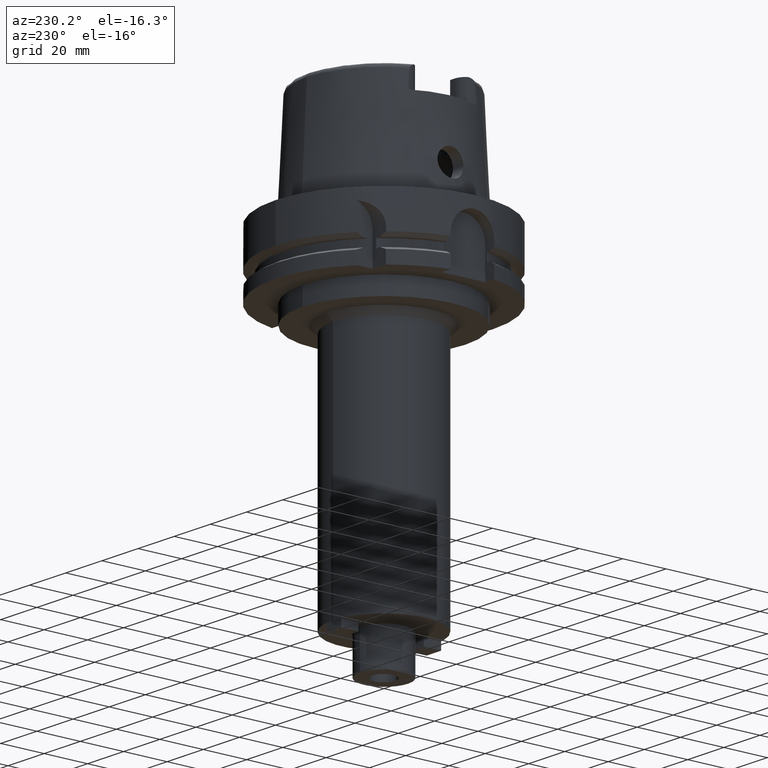
[diagram: clean part render]
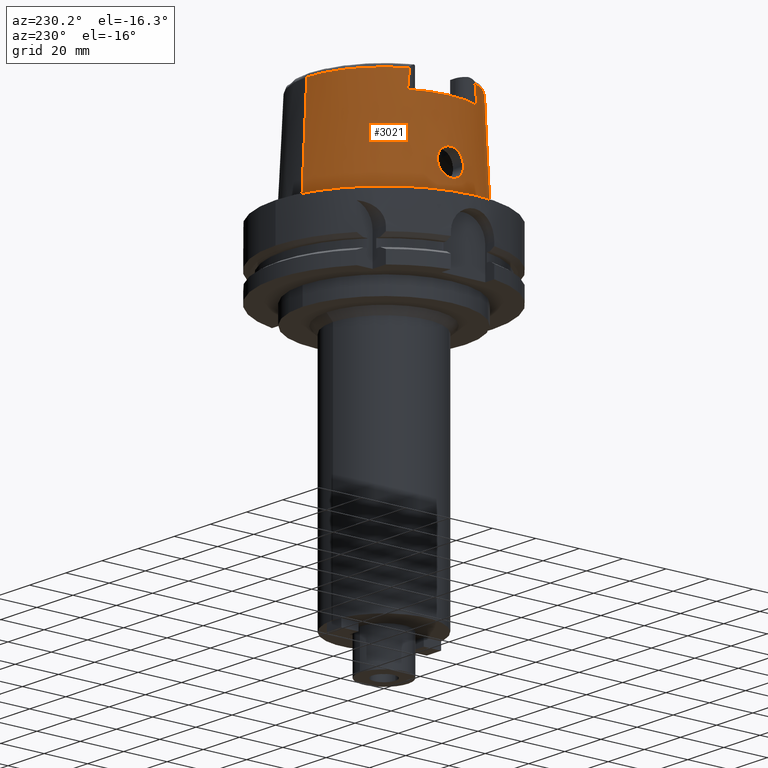
[diagram: same view with one face highlighted and labeled with its STEP entity id]
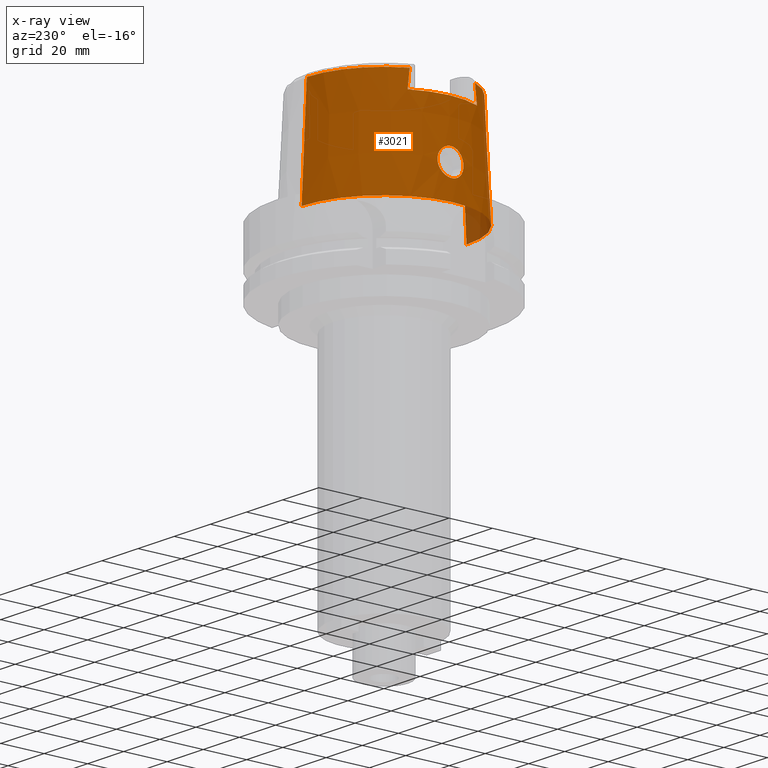
[diagram: x-ray of the same camera — body ghosted, the highlighted face saturated]
A machine part, auxiliary view. The second image highlights one B-rep face of the part: STEP entity #3021.
The next image is the same camera in x-ray: the body ghosted, the highlighted face saturated — about 3% of this face is hidden behind the body in this view.
In plain terms, the highlighted conical surface has half-angle 2.862 deg.
Its self-contained STEP definition (entity closure, byte-faithful):
#130=CARTESIAN_POINT('',(0.E0,0.E0,4.E1));
#131=DIRECTION('',(0.E0,0.E0,-1.E0));
#132=DIRECTION('',(-8.958345712660E-1,-4.443876921391E-1,0.E0));
#133=AXIS2_PLACEMENT_3D('',#130,#131,#132);
#221=CARTESIAN_POINT('',(-3.224999491821E1,-1.506448480621E1,4.809973264022E1));
#281=CARTESIAN_POINT('',(0.E0,0.E0,4.809987853799E1));
#282=DIRECTION('',(0.E0,0.E0,-1.E0));
#283=DIRECTION('',(0.E0,-1.E0,0.E0));
#284=AXIS2_PLACEMENT_3D('',#281,#282,#283);
#289=CARTESIAN_POINT('',(-3.224999876012E1,-1.599794043148E1,4.E1));
#290=CARTESIAN_POINT('',(-3.224999876012E1,-1.589618560063E1,4.090434232027E1));
#291=CARTESIAN_POINT('',(-3.224999990104E1,-1.569149929484E1,4.271014757138E1));
#292=CARTESIAN_POINT('',(-3.225000220619E1,-1.538028254450E1,4.541006270286E1));
#293=CARTESIAN_POINT('',(-3.224999491821E1,-1.517027181539E1,4.720433969908E1));
#294=CARTESIAN_POINT('',(-3.224999491821E1,-1.506448480621E1,4.809973264022E1));
#299=DIRECTION('',(5.154182075151E-5,-4.993927430816E-2,-9.987522546783E-1));
#300=VECTOR('',#299,4.815996991514E1);
#301=CARTESIAN_POINT('',(-2.482252536761E-3,-3.559494263425E1,
4.809987853799E1));
#302=LINE('',#301,#300);
#306=CARTESIAN_POINT('',(-3.225000136841E1,1.506443228461E1,4.809991919933E1));
#307=CARTESIAN_POINT('',(-3.225000136841E1,1.517024628781E1,4.720430024068E1));
#308=CARTESIAN_POINT('',(-3.225000007421E1,1.538032523710E1,4.541024583547E1));
#309=CARTESIAN_POINT('',(-3.224999768767E1,1.569154926881E1,4.271027467018E1));
#310=CARTESIAN_POINT('',(-3.225000534596E1,1.589614940559E1,4.090439636549E1));
#311=CARTESIAN_POINT('',(-3.225000534596E1,1.599791057085E1,4.E1));
#316=CARTESIAN_POINT('',(-3.755000165825E1,1.432651546991E-13,9.E0));
#317=CARTESIAN_POINT('',(-3.755000165825E1,-5.185560787448E-1,9.E0));
#318=CARTESIAN_POINT('',(-3.752119038131E1,-1.556716984308E0,9.135734722668E0));
#319=CARTESIAN_POINT('',(-3.740130554103E1,-3.006802699936E0,9.729109611442E0));
#320=CARTESIAN_POINT('',(-3.722726318975E1,-4.270787324592E0,1.068748216953E1));
#321=CARTESIAN_POINT('',(-3.703605345602E1,-5.245410217770E0,1.194520323917E1));
#322=CARTESIAN_POINT('',(-3.686625967759E1,-5.862506743114E0,1.342477736647E1));
#323=CARTESIAN_POINT('',(-3.675188493320E1,-6.068957740844E0,1.500492021002E1));
#324=CARTESIAN_POINT('',(-3.670699294937E1,-5.861659041703E0,1.657084310318E1));
#325=CARTESIAN_POINT('',(-3.672675900459E1,-5.257535553203E0,1.802994044463E1));
#326=CARTESIAN_POINT('',(-3.679087786361E1,-4.302010649084E0,1.928009624325E1));
#327=CARTESIAN_POINT('',(-3.687048843870E1,-3.045271169507E0,2.025039439541E1));
#328=CARTESIAN_POINT('',(-3.693403423248E1,-1.575202321741E0,2.086150979571E1));
#329=CARTESIAN_POINT('',(-3.694998175923E1,-5.250091625421E-1,2.1E1));
#330=CARTESIAN_POINT('',(-3.694998175923E1,0.E0,2.1E1));
#335=CARTESIAN_POINT('',(-3.694998175923E1,0.E0,2.1E1));
#336=CARTESIAN_POINT('',(-3.694998175923E1,5.232795194756E-1,2.1E1));
#337=CARTESIAN_POINT('',(-3.693412453033E1,1.570860915333E0,2.086225710789E1));
#338=CARTESIAN_POINT('',(-3.687089197851E1,3.037978777102E0,2.025451179144E1));
#339=CARTESIAN_POINT('',(-3.679106406143E1,4.299509589152E0,1.928373303358E1));
#340=CARTESIAN_POINT('',(-3.672648539176E1,5.261375400361E0,1.802478386033E1));
#341=CARTESIAN_POINT('',(-3.670709909781E1,5.863702681450E0,1.656194075933E1));
#342=CARTESIAN_POINT('',(-3.675206984369E1,6.067618997678E0,1.500575580849E1));
#343=CARTESIAN_POINT('',(-3.686472387378E1,5.865809689032E0,1.344398412852E1));
#344=CARTESIAN_POINT('',(-3.703183517815E1,5.262900383072E0,1.197739891732E1));
#345=CARTESIAN_POINT('',(-3.722263417644E1,4.298757024079E0,1.071458147677E1));
#346=CARTESIAN_POINT('',(-3.739912191669E1,3.029436577791E0,9.739991066842E0));
#347=CARTESIAN_POINT('',(-3.752122404034E1,1.560909655761E0,9.135510008541E0));
#348=CARTESIAN_POINT('',(-3.755000165825E1,5.189906360043E-1,9.E0));
#349=CARTESIAN_POINT('',(-3.755000165825E1,1.432651546991E-13,9.E0));
#364=DIRECTION('',(-5.154182075159E-5,4.993927430816E-2,-9.987522546783E-1));
#365=VECTOR('',#364,4.815996991514E1);
#366=CARTESIAN_POINT('',(2.482252536765E-3,3.559494263425E1,4.809987853799E1));
#367=LINE('',#366,#365);
#2071=CARTESIAN_POINT('',(0.E0,0.E0,1.023181539495E-12));
#2072=DIRECTION('',(0.E0,0.E0,1.E0));
#2073=DIRECTION('',(0.E0,1.E0,0.E0));
#2074=AXIS2_PLACEMENT_3D('',#2071,#2072,#2073);
#2402=CARTESIAN_POINT('',(-3.225000136841E1,1.506443228461E1,4.809991919933E1));
#2407=CARTESIAN_POINT('',(0.E0,0.E0,4.809987853799E1));
#2408=DIRECTION('',(0.E0,0.E0,-1.E0));
#2409=DIRECTION('',(-9.060276961631E-1,4.232183996300E-1,0.E0));
#2410=AXIS2_PLACEMENT_3D('',#2407,#2408,#2409);
#2495=CARTESIAN_POINT('',(-3.224999876012E1,-1.599794043148E1,4.E1));
#2496=VERTEX_POINT('',#2495);
#2497=CARTESIAN_POINT('',(-3.224999999999E1,1.599793480981E1,4.E1));
#2498=VERTEX_POINT('',#2497);
#2500=VERTEX_POINT('',#2402);
#2501=CARTESIAN_POINT('',(0.E0,3.559494289391E1,4.809987853799E1));
#2502=VERTEX_POINT('',#2501);
#2506=VERTEX_POINT('',#221);
#2509=CARTESIAN_POINT('',(1.065814103640E-14,-3.559494289391E1,
4.809987853799E1));
#2510=VERTEX_POINT('',#2509);
#2511=CARTESIAN_POINT('',(0.E0,-3.800001658252E1,6.821210263297E-13));
#2512=VERTEX_POINT('',#2511);
#2513=CARTESIAN_POINT('',(0.E0,3.800001658252E1,1.023181539495E-12));
#2514=VERTEX_POINT('',#2513);
#2515=VERTEX_POINT('',#316);
#2516=VERTEX_POINT('',#330);
#2995=CARTESIAN_POINT('',(0.E0,0.E0,2.404993926900E1));
#2996=DIRECTION('',(0.E0,0.E0,-1.E0));
#2997=DIRECTION('',(0.E0,-1.E0,0.E0));
#2998=AXIS2_PLACEMENT_3D('',#2995,#2996,#2997);
#2999=CONICAL_SURFACE('',#2998,3.679747973821E1,2.8625E0);
#3000=ORIENTED_EDGE('',*,*,#2904,.F.);
#3001=ORIENTED_EDGE('',*,*,#2987,.T.);
#3002=ORIENTED_EDGE('',*,*,#2977,.F.);
#3004=ORIENTED_EDGE('',*,*,#3003,.T.);
#3006=ORIENTED_EDGE('',*,*,#3005,.F.);
#3008=ORIENTED_EDGE('',*,*,#3007,.F.);
#3010=ORIENTED_EDGE('',*,*,#3009,.F.);
#3012=ORIENTED_EDGE('',*,*,#3011,.T.);
#3013=EDGE_LOOP('',(#3000,#3001,#3002,#3004,#3006,#3008,#3010,#3012));
#3014=FACE_OUTER_BOUND('',#3013,.F.);
#3016=ORIENTED_EDGE('',*,*,#3015,.T.);
#3018=ORIENTED_EDGE('',*,*,#3017,.T.);
#3019=EDGE_LOOP('',(#3016,#3018));
#3020=FACE_BOUND('',#3019,.F.);
#134=CIRCLE('',#133,3.599995025244E1);
#285=CIRCLE('',#284,3.559494289391E1);
#295=B_SPLINE_CURVE_WITH_KNOTS('',3,(#289,#290,#291,#292,#293,#294),
.UNSPECIFIED.,.F.,.F.,(4,1,1,4),(0.E0,3.333333333333E-1,6.666666666667E-1,1.E0),
.UNSPECIFIED.);
#312=B_SPLINE_CURVE_WITH_KNOTS('',3,(#306,#307,#308,#309,#310,#311),
.UNSPECIFIED.,.F.,.F.,(4,1,1,4),(0.E0,3.333333333333E-1,6.666666666667E-1,1.E0),
.UNSPECIFIED.);
#331=B_SPLINE_CURVE_WITH_KNOTS('',3,(#316,#317,#318,#319,#320,#321,#322,#323,
#324,#325,#326,#327,#328,#329,#330),.UNSPECIFIED.,.F.,.F.,(4,1,1,1,1,1,1,1,1,1,
1,1,4),(0.E0,8.333333333333E-2,1.666666666667E-1,2.5E-1,3.333333333333E-1,
4.166666666667E-1,5.E-1,5.833333333333E-1,6.666666666667E-1,7.5E-1,
8.333333333333E-1,9.166666666667E-1,1.E0),.UNSPECIFIED.);
#350=B_SPLINE_CURVE_WITH_KNOTS('',3,(#335,#336,#337,#338,#339,#340,#341,#342,
#343,#344,#345,#346,#347,#348,#349),.UNSPECIFIED.,.F.,.F.,(4,1,1,1,1,1,1,1,1,1,
1,1,4),(0.E0,8.333333333333E-2,1.666666666667E-1,2.5E-1,3.333333333333E-1,
4.166666666667E-1,5.E-1,5.833333333333E-1,6.666666666667E-1,7.5E-1,
8.333333333333E-1,9.166666666667E-1,1.E0),.UNSPECIFIED.);
#2075=CIRCLE('',#2074,3.800001658252E1);
#2411=CIRCLE('',#2410,3.559494289391E1);
#2904=EDGE_CURVE('',#2496,#2498,#134,.T.);
#2977=EDGE_CURVE('',#2510,#2506,#285,.T.);
#2987=EDGE_CURVE('',#2496,#2506,#295,.T.);
#3003=EDGE_CURVE('',#2510,#2512,#302,.T.);
#3005=EDGE_CURVE('',#2514,#2512,#2075,.T.);
#3007=EDGE_CURVE('',#2502,#2514,#367,.T.);
#3009=EDGE_CURVE('',#2500,#2502,#2411,.T.);
#3011=EDGE_CURVE('',#2500,#2498,#312,.T.);
#3015=EDGE_CURVE('',#2515,#2516,#331,.T.);
#3017=EDGE_CURVE('',#2516,#2515,#350,.T.);
#3021=ADVANCED_FACE('',(#3014,#3020),#2999,.T.);